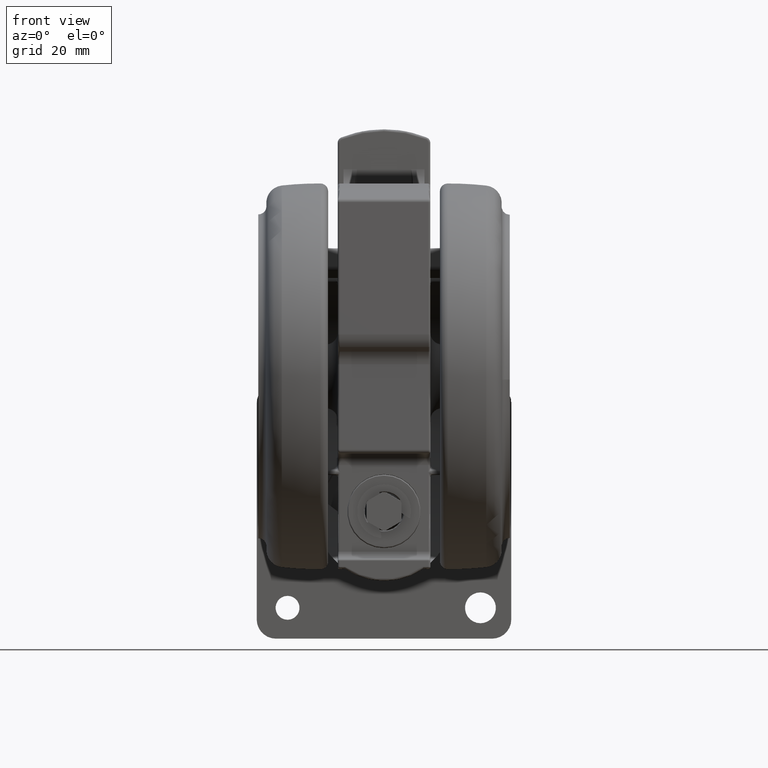
[diagram: clean part render]
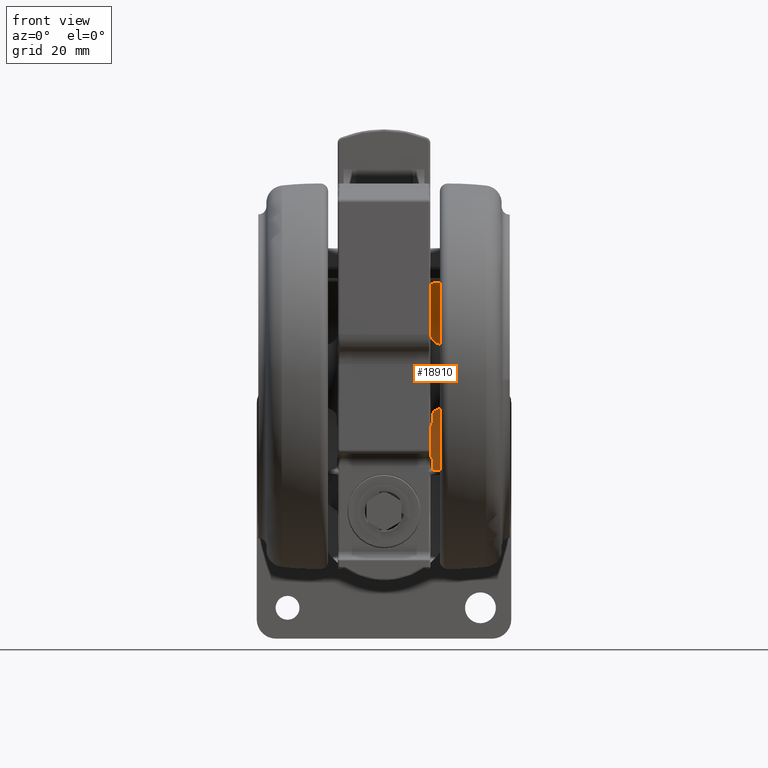
[diagram: same view with one face highlighted and labeled with its STEP entity id]
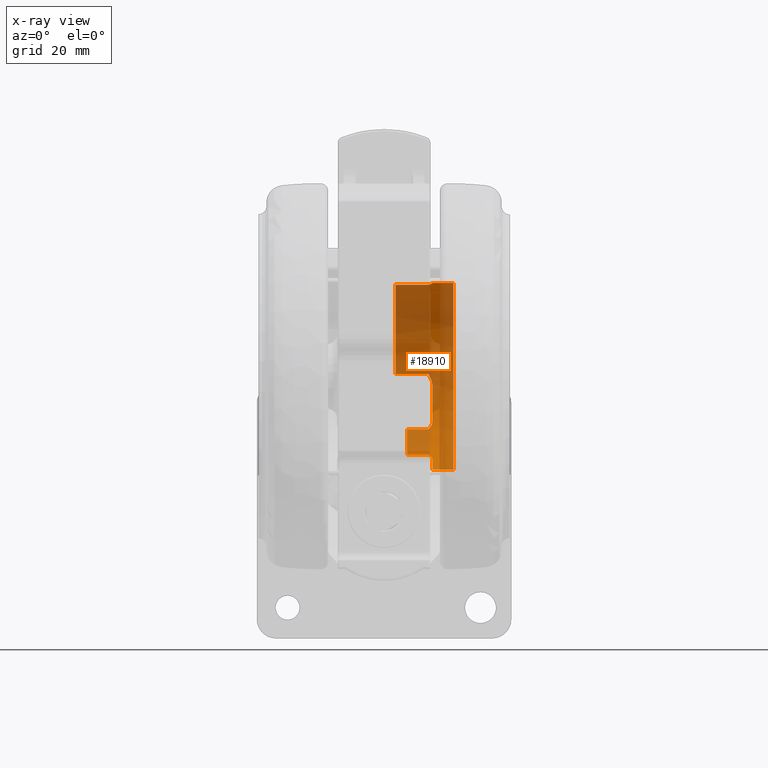
[diagram: x-ray of the same camera — body ghosted, the highlighted face saturated]
A machine part, front view. The second image highlights one B-rep face of the part: STEP entity #18910.
The next image is the same camera in x-ray: the body ghosted, the highlighted face saturated — about 86% of this face is hidden behind the body in this view.
In plain terms, the highlighted cylindrical surface (partial cylindrical patch) has radius 24.25 mm, axis along (-1, 0, 0).
Its self-contained STEP definition (entity closure, byte-faithful):
#206 = CARTESIAN_POINT ( 'NONE',  ( -19.87857176667497300, 13.89220060343396100, -20.85788260467521500 ) ) ;
#1282 = VECTOR ( 'NONE', #50756, 1000.000000000000000 ) ;
#1465 = CARTESIAN_POINT ( 'NONE',  ( 0.0002389668261396082900, 0.0000000000000000000, -20.09999999999991300 ) ) ;
#1549 = CARTESIAN_POINT ( 'NONE',  ( -19.69609011934873200, 14.14627585370442700, -21.09999999999991300 ) ) ;
#1597 = EDGE_CURVE ( 'NONE', #19602, #2826, #64582, .T. ) ;
#2325 = CARTESIAN_POINT ( 'NONE',  ( 0.3936114866734364800, 24.24680923463187200, -14.59999999999991400 ) ) ;
#2826 = VERTEX_POINT ( 'NONE', #2325 ) ;
#3247 = LINE ( 'NONE', #11467, #71427 ) ;
#3838 = VERTEX_POINT ( 'NONE', #46700 ) ;
#4315 = CARTESIAN_POINT ( 'NONE',  ( 0.3936114866734364800, 24.24680923463187200, -20.10000816246563500 ) ) ;
#4522 = AXIS2_PLACEMENT_3D ( 'NONE', #56375, #18014, #62812 ) ;
#4707 = EDGE_CURVE ( 'NONE', #79976, #12316, #60595, .T. ) ;
#5776 = EDGE_CURVE ( 'NONE', #63045, #3838, #3247, .T. ) ;
#6581 = CARTESIAN_POINT ( 'NONE',  ( 0.3936114866734364800, 24.24680923463187200, -20.10000816246563500 ) ) ;
#6695 = CARTESIAN_POINT ( 'NONE',  ( 0.0002389668261396082900, 0.0000000000000000000, -26.59999999999991600 ) ) ;
#6825 = CARTESIAN_POINT ( 'NONE',  ( -24.24964872145147900, -0.07380451153341210900, -29.59999999999991600 ) ) ;
#7007 = DIRECTION ( 'NONE',  ( -0.0000000000000000000, 0.0000000000000000000, -1.000000000000000000 ) ) ;
#7835 = DIRECTION ( 'NONE',  ( 0.02026128721468460300, 0.9997947190500678900, 0.0000000000000000000 ) ) ;
#8410 = ORIENTED_EDGE ( 'NONE', *, *, #21222, .T. ) ;
#8579 = CARTESIAN_POINT ( 'NONE',  ( -12.39397984601033900, 20.84573297332037400, -20.85678479352153400 ) ) ;
#11467 = CARTESIAN_POINT ( 'NONE',  ( -5.475811879003543900, -23.62361884076800000, -14.09999999999991400 ) ) ;
#11940 = ORIENTED_EDGE ( 'NONE', *, *, #46806, .T. ) ;
#12316 = VERTEX_POINT ( 'NONE', #66124 ) ;
#13050 = B_SPLINE_CURVE_WITH_KNOTS ( 'NONE', 3,
 ( #14773, #8579, #66336, #27949, #72772, #34395 ),
 .UNSPECIFIED., .F., .F.,
 ( 4, 2, 4 ),
 ( -8.177094029908796300E-006, 0.001183909854632662900, 0.002375996803295234600 ),
 .UNSPECIFIED. ) ;
#13135 = DIRECTION ( 'NONE',  ( -0.02026128721468460300, -0.9997947190500678900, 0.0000000000000000000 ) ) ;
#14670 = EDGE_CURVE ( 'NONE', #36476, #19602, #21471, .T. ) ;
#14681 = EDGE_CURVE ( 'NONE', #23613, #41200, #54258, .T. ) ;
#14773 = CARTESIAN_POINT ( 'NONE',  ( -12.66197508682020100, 20.68165455807734800, -21.09999999999991300 ) ) ;
#14777 = CARTESIAN_POINT ( 'NONE',  ( -4.178161522369964400, -23.88982603056088600, -20.23549899132534300 ) ) ;
#15995 = ORIENTED_EDGE ( 'NONE', *, *, #27571, .T. ) ;
#17135 = CARTESIAN_POINT ( 'NONE',  ( -20.85114496733413200, 12.38072243571603300, -20.09999999999991300 ) ) ;
#17253 = CARTESIAN_POINT ( 'NONE',  ( -24.24213737826774600, 0.7485160399563080000, -20.61780369894062700 ) ) ;
#17775 = B_SPLINE_CURVE_WITH_KNOTS ( 'NONE', 3,
 ( #70514, #64049, #76951, #38563, #206, #44991 ),
 .UNSPECIFIED., .F., .F.,
 ( 4, 2, 4 ),
 ( 0.0000000000000000000, 0.001186706173453178900, 0.002373412346906357900 ),
 .UNSPECIFIED. ) ;
#18014 = DIRECTION ( 'NONE',  ( -0.0000000000000000000, -0.0000000000000000000, -1.000000000000000000 ) ) ;
#18910 = ADVANCED_FACE ( 'NONE', ( #37119 ), #52126, .F. ) ;
#19020 = CARTESIAN_POINT ( 'NONE',  ( 0.3936114866734364800, 24.24680923463187200, -14.09999999999991400 ) ) ;
#19602 = VERTEX_POINT ( 'NONE', #6581 ) ;
#19938 = CARTESIAN_POINT ( 'NONE',  ( 0.0002389668261396082900, 0.0000000000000000000, -14.09999999999991400 ) ) ;
#20917 = ORIENTED_EDGE ( 'NONE', *, *, #23355, .T. ) ;
#21222 = EDGE_CURVE ( 'NONE', #3838, #42290, #25703, .T. ) ;
#21241 = CARTESIAN_POINT ( 'NONE',  ( -5.171076065383114300, -23.69425784071033500, -20.85788260468525100 ) ) ;
#21471 = B_SPLINE_CURVE_WITH_KNOTS ( 'NONE', 3,
 ( #42715, #29885, #68238, #4315 ),
 .UNSPECIFIED., .F., .F.,
 ( 4, 4 ),
 ( 0.0000000000000000000, 4.125508360019076400E-006 ),
 .UNSPECIFIED. ) ;
#22863 = VERTEX_POINT ( 'NONE', #17135 ) ;
#22960 = CARTESIAN_POINT ( 'NONE',  ( -2.043764977819661200, -24.16370310764210300, -14.59999999999991400 ) ) ;
#23355 = EDGE_CURVE ( 'NONE', #41734, #45012, #33777, .T. ) ;
#23613 = VERTEX_POINT ( 'NONE', #70505 ) ;
#23684 = CARTESIAN_POINT ( 'NONE',  ( -24.21014971456013500, 1.402578581047440000, -20.33455975223587600 ) ) ;
#24126 = ORIENTED_EDGE ( 'NONE', *, *, #79447, .T. ) ;
#24348 = CARTESIAN_POINT ( 'NONE',  ( 0.0002389668261396082900, 0.0000000000000000000, -14.59999999999991400 ) ) ;
#24463 = CARTESIAN_POINT ( 'NONE',  ( 0.3894865235355874400, 24.24687580575268700, -20.09999999999991300 ) ) ;
#24520 = VERTEX_POINT ( 'NONE', #80686 ) ;
#25136 = CARTESIAN_POINT ( 'NONE',  ( -5.475811879003543900, -23.62361884076800000, -21.09999999999991300 ) ) ;
#25245 = CARTESIAN_POINT ( 'NONE',  ( -24.24964872145147900, -0.07380451153341210900, -14.09999999999991400 ) ) ;
#25703 = CIRCLE ( 'NONE', #32011, 24.25000000000000000 ) ;
#26440 = CIRCLE ( 'NONE', #33297, 24.25000000000000000 ) ;
#27355 = ORIENTED_EDGE ( 'NONE', *, *, #4707, .T. ) ;
#27571 = EDGE_CURVE ( 'NONE', #22863, #79976, #17775, .T. ) ;
#27949 = CARTESIAN_POINT ( 'NONE',  ( -11.51498285906586700, 21.34437822009707400, -20.23549487671058200 ) ) ;
#29885 = CARTESIAN_POINT ( 'NONE',  ( 0.3908615158220613600, 24.24685373229496600, -20.09999999999991300 ) ) ;
#30158 = CARTESIAN_POINT ( 'NONE',  ( -24.16049240885921600, 2.091750264335405300, -20.13556737379658300 ) ) ;
#30727 = ORIENTED_EDGE ( 'NONE', *, *, #62049, .T. ) ;
#30809 = DIRECTION ( 'NONE',  ( -0.02026128721468460300, -0.9997947190500678900, 0.0000000000000000000 ) ) ;
#31900 = DIRECTION ( 'NONE',  ( 0.0000000000000000000, -0.0000000000000000000, 1.000000000000000000 ) ) ;
#32011 = AXIS2_PLACEMENT_3D ( 'NONE', #76627, #38250, #83030 ) ;
#33297 = AXIS2_PLACEMENT_3D ( 'NONE', #72602, #34238, #79053 ) ;
#33329 = LINE ( 'NONE', #37894, #1282 ) ;
#33777 = LINE ( 'NONE', #74185, #65851 ) ;
#34238 = DIRECTION ( 'NONE',  ( -0.0000000000000000000, -0.0000000000000000000, -1.000000000000000000 ) ) ;
#34395 = CARTESIAN_POINT ( 'NONE',  ( -10.81639354680381100, 21.70398491210967200, -20.09999999999991300 ) ) ;
#34885 = EDGE_CURVE ( 'NONE', #45302, #24520, #40681, .T. ) ;
#35128 = CIRCLE ( 'NONE', #63587, 24.25000000000000000 ) ;
#36476 = VERTEX_POINT ( 'NONE', #24463 ) ;
#37119 = FACE_OUTER_BOUND ( 'NONE', #79439, .T. ) ;
#37894 = CARTESIAN_POINT ( 'NONE',  ( -2.043764977819661200, -24.16370310764210300, -14.09999999999991400 ) ) ;
#38250 = DIRECTION ( 'NONE',  ( -0.0000000000000000000, -0.0000000000000000000, -1.000000000000000000 ) ) ;
#38563 = CARTESIAN_POINT ( 'NONE',  ( -20.05957132985851700, 13.63036423869893600, -20.61204552296907600 ) ) ;
#40284 = CARTESIAN_POINT ( 'NONE',  ( -3.401711316238780200, -24.01019021731305600, -20.09999999999991300 ) ) ;
#40681 = CIRCLE ( 'NONE', #59760, 24.25000000000000000 ) ;
#40863 = CARTESIAN_POINT ( 'NONE',  ( -24.11353606029355500, 2.566778903890738000, -20.09999999999991300 ) ) ;
#41200 = VERTEX_POINT ( 'NONE', #44865 ) ;
#41734 = VERTEX_POINT ( 'NONE', #44491 ) ;
#42089 = CIRCLE ( 'NONE', #4522, 24.25000000000000000 ) ;
#42290 = VERTEX_POINT ( 'NONE', #6825 ) ;
#42715 = CARTESIAN_POINT ( 'NONE',  ( 0.3894865235355874400, 24.24687580575268700, -20.09999999999991300 ) ) ;
#43050 = AXIS2_PLACEMENT_3D ( 'NONE', #19938, #7007, #58323 ) ;
#43719 = DIRECTION ( 'NONE',  ( -0.0000000000000000000, 0.0000000000000000000, -1.000000000000000000 ) ) ;
#44491 = CARTESIAN_POINT ( 'NONE',  ( -12.66197508682020100, 20.68165455807734800, -26.59999999999991600 ) ) ;
#44865 = CARTESIAN_POINT ( 'NONE',  ( -24.11353606029355500, 2.566778903890738000, -20.09999999999991300 ) ) ;
#44991 = CARTESIAN_POINT ( 'NONE',  ( -19.69609011934873200, 14.14627585370442700, -21.09999999999991300 ) ) ;
#45012 = VERTEX_POINT ( 'NONE', #53478 ) ;
#45302 = VERTEX_POINT ( 'NONE', #58545 ) ;
#46241 = DIRECTION ( 'NONE',  ( -0.0000000000000000000, -0.0000000000000000000, -1.000000000000000000 ) ) ;
#46700 = CARTESIAN_POINT ( 'NONE',  ( -5.475811879003543900, -23.62361884076800000, -29.59999999999991600 ) ) ;
#46806 = EDGE_CURVE ( 'NONE', #12316, #41734, #78224, .T. ) ;
#47523 = VECTOR ( 'NONE', #31900, 1000.000000000000000 ) ;
#48289 = ORIENTED_EDGE ( 'NONE', *, *, #53462, .T. ) ;
#48862 = ORIENTED_EDGE ( 'NONE', *, *, #65749, .T. ) ;
#49150 = CARTESIAN_POINT ( 'NONE',  ( -24.25089639183013500, 0.3361415192149860800, -20.85980942396933100 ) ) ;
#50756 = DIRECTION ( 'NONE',  ( -0.0000000000000000000, 0.0000000000000000000, -1.000000000000000000 ) ) ;
#51540 = DIRECTION ( 'NONE',  ( -0.0000000000000000000, 0.0000000000000000000, -1.000000000000000000 ) ) ;
#51947 = ORIENTED_EDGE ( 'NONE', *, *, #61231, .T. ) ;
#52126 = CYLINDRICAL_SURFACE ( 'NONE', #43050, 24.25000000000000000 ) ;
#52168 = ORIENTED_EDGE ( 'NONE', *, *, #14670, .T. ) ;
#52878 = CARTESIAN_POINT ( 'NONE',  ( -3.799015667399420000, -23.95389705021773000, -20.09999999999990900 ) ) ;
#53462 = EDGE_CURVE ( 'NONE', #2826, #79027, #35128, .T. ) ;
#53478 = CARTESIAN_POINT ( 'NONE',  ( -12.66197508682020100, 20.68165455807734800, -21.09999999999991300 ) ) ;
#54258 = B_SPLINE_CURVE_WITH_KNOTS ( 'NONE', 3,
 ( #74673, #49150, #17253, #23684, #68512, #30158, #79222, #40863 ),
 .UNSPECIFIED., .F., .F.,
 ( 4, 2, 2, 4 ),
 ( -1.080784308869067600E-005, 0.001414583086684633100, 0.002127278551571292400, 0.002839974016457951200 ),
 .UNSPECIFIED. ) ;
#54618 = ORIENTED_EDGE ( 'NONE', *, *, #5776, .T. ) ;
#54677 = EDGE_CURVE ( 'NONE', #42290, #23613, #82976, .T. ) ;
#55115 = CARTESIAN_POINT ( 'NONE',  ( -10.81639354680381100, 21.70398491210967200, -20.09999999999991300 ) ) ;
#55418 = ORIENTED_EDGE ( 'NONE', *, *, #54677, .T. ) ;
#56348 = DIRECTION ( 'NONE',  ( -0.0000000000000000000, 0.0000000000000000000, -1.000000000000000000 ) ) ;
#56358 = CARTESIAN_POINT ( 'NONE',  ( -19.69609011934873200, 14.14627585370442700, -14.09999999999991400 ) ) ;
#56375 = CARTESIAN_POINT ( 'NONE',  ( 0.0002389668261396082900, 0.0000000000000000000, -20.09999999999991300 ) ) ;
#58267 = B_SPLINE_CURVE_WITH_KNOTS ( 'NONE', 3,
 ( #40284, #52878, #14777, #59626, #21241, #66067 ),
 .UNSPECIFIED., .F., .F.,
 ( 4, 2, 4 ),
 ( 0.0000000000000000000, 0.001186706173453178900, 0.002373412346906357900 ),
 .UNSPECIFIED. ) ;
#58323 = DIRECTION ( 'NONE',  ( -0.02026128721468460300, -0.9997947190500678900, 0.0000000000000000000 ) ) ;
#58545 = CARTESIAN_POINT ( 'NONE',  ( -2.043764977819661200, -24.16370310764210300, -20.09999999999991300 ) ) ;
#59626 = CARTESIAN_POINT ( 'NONE',  ( -4.859747383667790500, -23.76054189389609300, -20.61204552296906900 ) ) ;
#59760 = AXIS2_PLACEMENT_3D ( 'NONE', #1465, #46241, #7835 ) ;
#60443 = EDGE_CURVE ( 'NONE', #79027, #45302, #33329, .T. ) ;
#60595 = LINE ( 'NONE', #56358, #75580 ) ;
#61231 = EDGE_CURVE ( 'NONE', #24520, #63045, #58267, .T. ) ;
#62049 = EDGE_CURVE ( 'NONE', #64521, #36476, #42089, .T. ) ;
#62812 = DIRECTION ( 'NONE',  ( 0.02026128721468371500, 0.9997947190500678900, 0.0000000000000000000 ) ) ;
#63045 = VERTEX_POINT ( 'NONE', #25136 ) ;
#63587 = AXIS2_PLACEMENT_3D ( 'NONE', #24348, #69172, #30809 ) ;
#64049 = CARTESIAN_POINT ( 'NONE',  ( -20.64627716538414100, 12.72575700186408200, -20.09999999999992700 ) ) ;
#64521 = VERTEX_POINT ( 'NONE', #55115 ) ;
#64582 = LINE ( 'NONE', #19020, #47523 ) ;
#65749 = EDGE_CURVE ( 'NONE', #41200, #22863, #26440, .T. ) ;
#65851 = VECTOR ( 'NONE', #80612, 1000.000000000000000 ) ;
#66003 = VECTOR ( 'NONE', #82901, 1000.000000000000000 ) ;
#66067 = CARTESIAN_POINT ( 'NONE',  ( -5.475811879003543900, -23.62361884076800000, -21.09999999999991300 ) ) ;
#66124 = CARTESIAN_POINT ( 'NONE',  ( -19.69609011934873200, 14.14627585370442700, -26.59999999999991600 ) ) ;
#66336 = CARTESIAN_POINT ( 'NONE',  ( -12.12075456444609900, 21.00629265522383100, -20.61203201000514400 ) ) ;
#66913 = AXIS2_PLACEMENT_3D ( 'NONE', #6695, #51540, #13135 ) ;
#67463 = ORIENTED_EDGE ( 'NONE', *, *, #1597, .T. ) ;
#68238 = CARTESIAN_POINT ( 'NONE',  ( 0.3922365089271601700, 24.24683154183343300, -20.10000272082967500 ) ) ;
#68512 = CARTESIAN_POINT ( 'NONE',  ( -24.19610034828621500, 1.628963941995619900, -20.25262444642501700 ) ) ;
#69172 = DIRECTION ( 'NONE',  ( 0.0000000000000000000, -0.0000000000000000000, 1.000000000000000000 ) ) ;
#70505 = CARTESIAN_POINT ( 'NONE',  ( -24.24964872145147900, -0.07380451153341210900, -21.09999999999991300 ) ) ;
#70514 = CARTESIAN_POINT ( 'NONE',  ( -20.85114496733413200, 12.38072243571603300, -20.09999999999991300 ) ) ;
#71427 = VECTOR ( 'NONE', #56348, 1000.000000000000000 ) ;
#72602 = CARTESIAN_POINT ( 'NONE',  ( 0.0002389668261396082900, 0.0000000000000000000, -20.09999999999991300 ) ) ;
#72772 = CARTESIAN_POINT ( 'NONE',  ( -11.17553077164719400, 21.52500140291416400, -20.09999999999990900 ) ) ;
#74185 = CARTESIAN_POINT ( 'NONE',  ( -12.66197508682020100, 20.68165455807734800, -14.09999999999991400 ) ) ;
#74673 = CARTESIAN_POINT ( 'NONE',  ( -24.24964872145147900, -0.07380451153341210900, -21.09999999999991300 ) ) ;
#75580 = VECTOR ( 'NONE', #43719, 1000.000000000000000 ) ;
#76627 = CARTESIAN_POINT ( 'NONE',  ( 0.0002389668261396082900, 0.0000000000000000000, -29.59999999999991600 ) ) ;
#76951 = CARTESIAN_POINT ( 'NONE',  ( -20.44121931186077700, 13.05103834410431000, -20.23549899132534700 ) ) ;
#77116 = ORIENTED_EDGE ( 'NONE', *, *, #60443, .T. ) ;
#78224 = CIRCLE ( 'NONE', #66913, 24.25000000000000000 ) ;
#79027 = VERTEX_POINT ( 'NONE', #22960 ) ;
#79053 = DIRECTION ( 'NONE',  ( 0.02026128721468460300, 0.9997947190500678900, 0.0000000000000000000 ) ) ;
#79222 = CARTESIAN_POINT ( 'NONE',  ( -24.13910614244149500, 2.326559067501316100, -20.09999999999990200 ) ) ;
#79439 = EDGE_LOOP ( 'NONE', ( #20917, #24126, #30727, #52168, #67463, #48289, #77116, #82696, #51947, #54618, #8410, #55418, #81397, #48862, #15995, #27355, #11940 ) ) ;
#79447 = EDGE_CURVE ( 'NONE', #45012, #64521, #13050, .T. ) ;
#79976 = VERTEX_POINT ( 'NONE', #1549 ) ;
#80612 = DIRECTION ( 'NONE',  ( 0.0000000000000000000, -0.0000000000000000000, 1.000000000000000000 ) ) ;
#80686 = CARTESIAN_POINT ( 'NONE',  ( -3.401711316238780200, -24.01019021731305600, -20.09999999999991300 ) ) ;
#81397 = ORIENTED_EDGE ( 'NONE', *, *, #14681, .T. ) ;
#82696 = ORIENTED_EDGE ( 'NONE', *, *, #34885, .T. ) ;
#82901 = DIRECTION ( 'NONE',  ( 0.0000000000000000000, -0.0000000000000000000, 1.000000000000000000 ) ) ;
#82976 = LINE ( 'NONE', #25245, #66003 ) ;
#83030 = DIRECTION ( 'NONE',  ( 0.02026128721468460300, 0.9997947190500678900, 0.0000000000000000000 ) ) ;